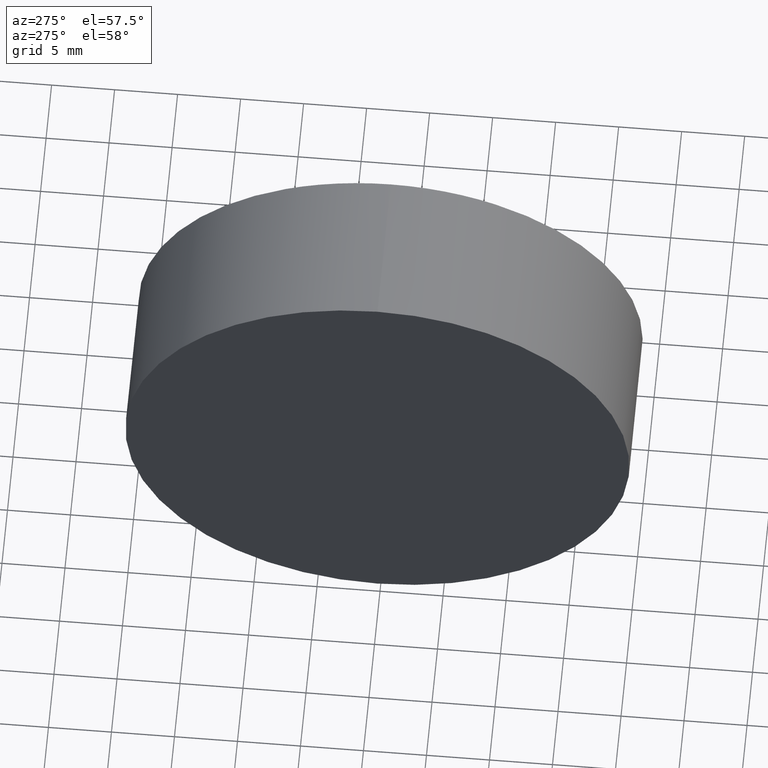
[diagram: clean part render]
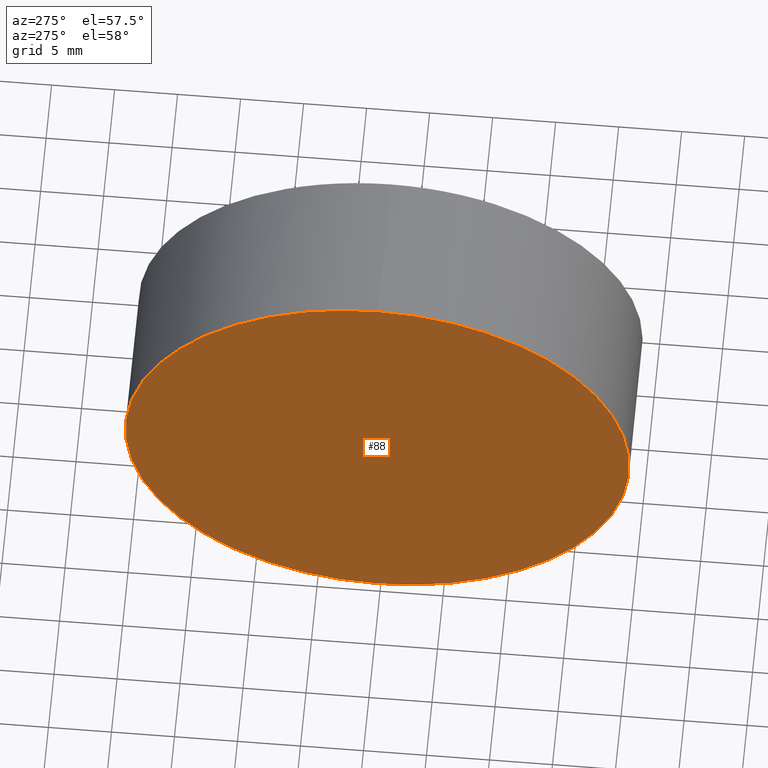
[diagram: same view with one face highlighted and labeled with its STEP entity id]
A machine part, auxiliary view. The second image highlights one B-rep face of the part: STEP entity #88.
In plain terms, the highlighted planar face has unit normal (1, 0, 0).
Its self-contained STEP definition (entity closure, byte-faithful):
#14 = AXIS2_PLACEMENT_3D ( 'NONE', #170, #42, #84 ) ;
#15 = DIRECTION ( 'NONE',  ( 0.0000000000000000000, 0.0000000000000000000, 1.000000000000000000 ) ) ;
#16 = CARTESIAN_POINT ( 'NONE',  ( 115.1442728140176700, 65.22153625845356800, 0.0000000000000000000 ) ) ;
#19 = DIRECTION ( 'NONE',  ( 0.0000000000000000000, 0.0000000000000000000, 1.000000000000000000 ) ) ;
#27 = EDGE_LOOP ( 'NONE', ( #150, #94 ) ) ;
#28 = AXIS2_PLACEMENT_3D ( 'NONE', #128, #155, #15 ) ;
#42 = DIRECTION ( 'NONE',  ( 1.000000000000000000, 0.0000000000000000000, 0.0000000000000000000 ) ) ;
#52 = VERTEX_POINT ( 'NONE', #55 ) ;
#55 = CARTESIAN_POINT ( 'NONE',  ( 115.1442728140176700, 65.22153625845356800, 19.99999999999998900 ) ) ;
#68 = AXIS2_PLACEMENT_3D ( 'NONE', #16, #74, #19 ) ;
#69 = CARTESIAN_POINT ( 'NONE',  ( 115.1442728140176700, 65.22153625845356800, -19.99999999999998900 ) ) ;
#74 = DIRECTION ( 'NONE',  ( -1.000000000000000000, -0.0000000000000000000, -0.0000000000000000000 ) ) ;
#81 = PLANE ( 'NONE',  #14 ) ;
#84 = DIRECTION ( 'NONE',  ( 0.0000000000000000000, 0.0000000000000000000, -1.000000000000000000 ) ) ;
#88 = ADVANCED_FACE ( 'NONE', ( #114 ), #81, .F. ) ;
#94 = ORIENTED_EDGE ( 'NONE', *, *, #146, .T. ) ;
#114 = FACE_OUTER_BOUND ( 'NONE', #27, .T. ) ;
#119 = CIRCLE ( 'NONE', #68, 19.99999999999998900 ) ;
#128 = CARTESIAN_POINT ( 'NONE',  ( 115.1442728140176700, 65.22153625845356800, 0.0000000000000000000 ) ) ;
#129 = EDGE_CURVE ( 'NONE', #52, #138, #119, .T. ) ;
#138 = VERTEX_POINT ( 'NONE', #69 ) ;
#146 = EDGE_CURVE ( 'NONE', #138, #52, #182, .T. ) ;
#150 = ORIENTED_EDGE ( 'NONE', *, *, #129, .T. ) ;
#155 = DIRECTION ( 'NONE',  ( -1.000000000000000000, -0.0000000000000000000, -0.0000000000000000000 ) ) ;
#170 = CARTESIAN_POINT ( 'NONE',  ( 115.1442728140176700, 65.22153625845356800, 0.0000000000000000000 ) ) ;
#182 = CIRCLE ( 'NONE', #28, 19.99999999999998900 ) ;